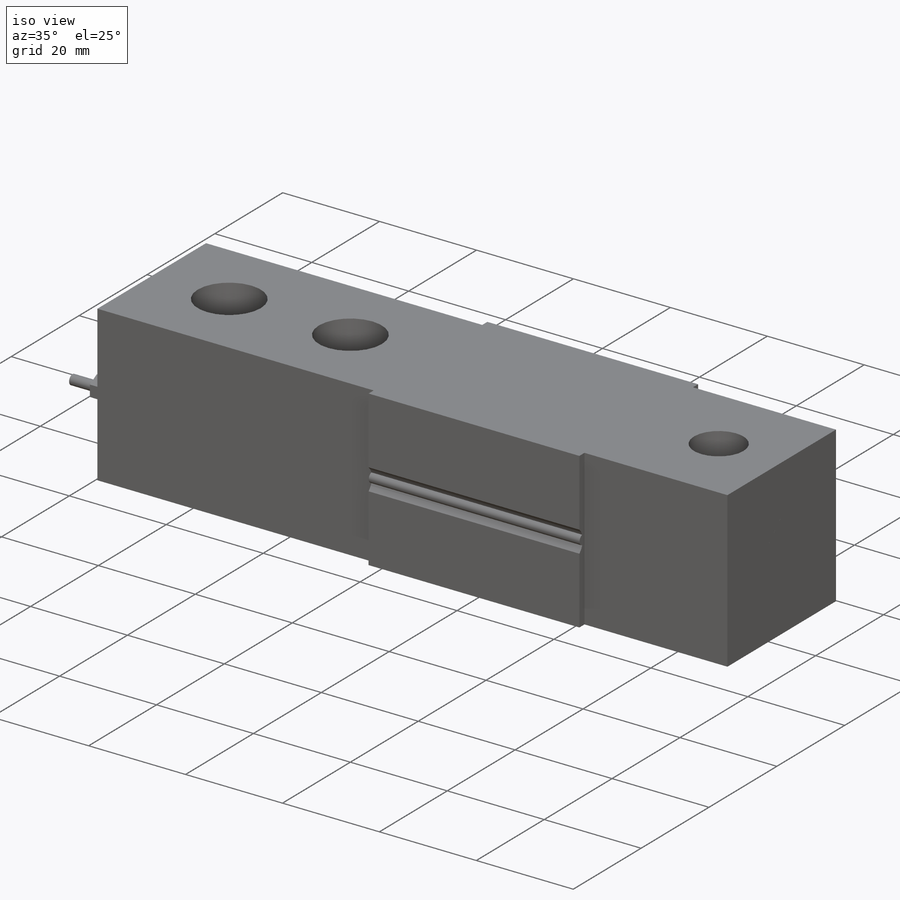
[diagram: iso view]
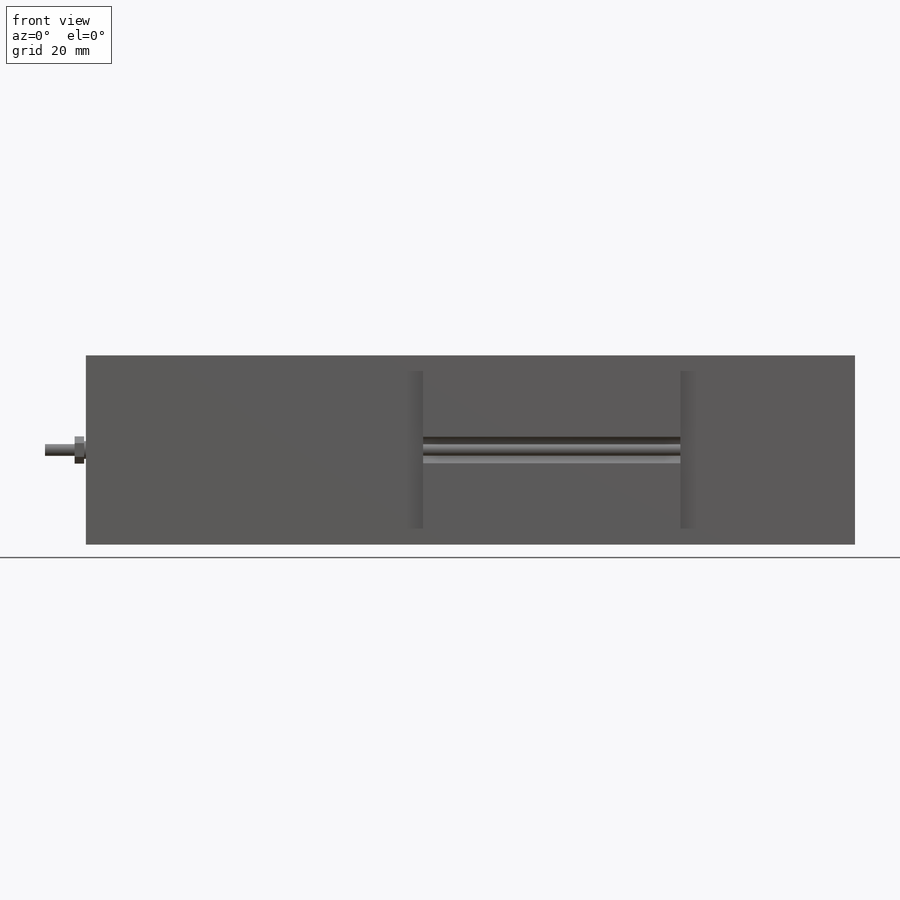
[diagram: front view]
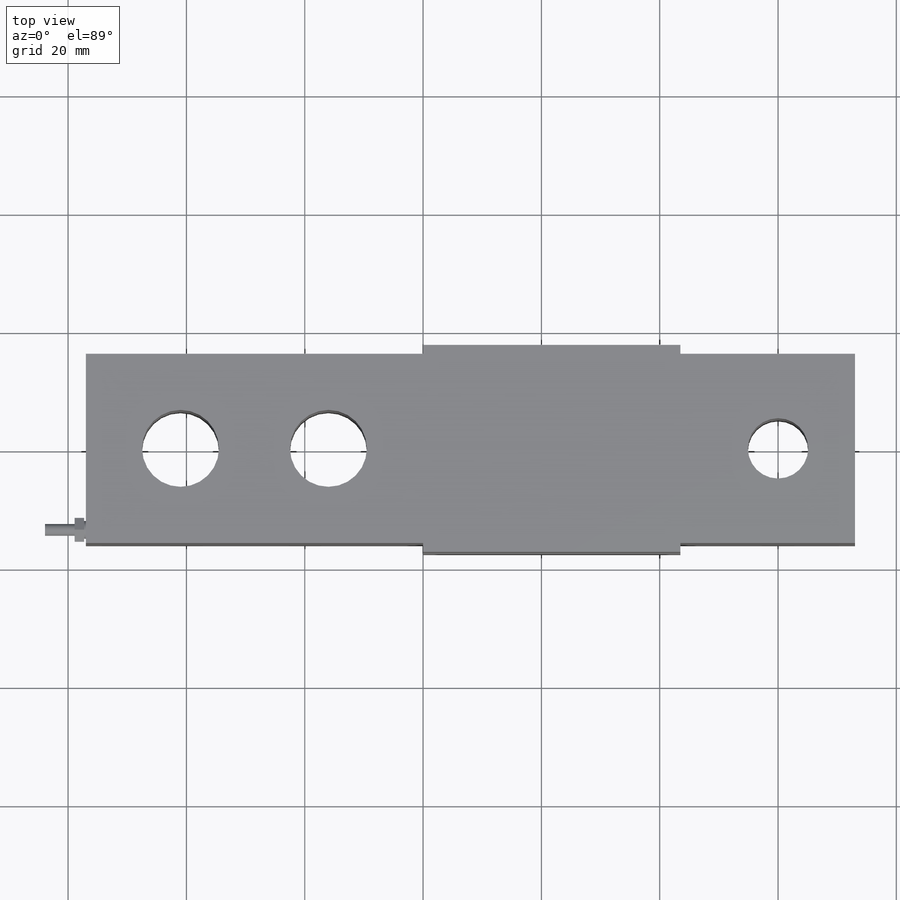
[diagram: top view]
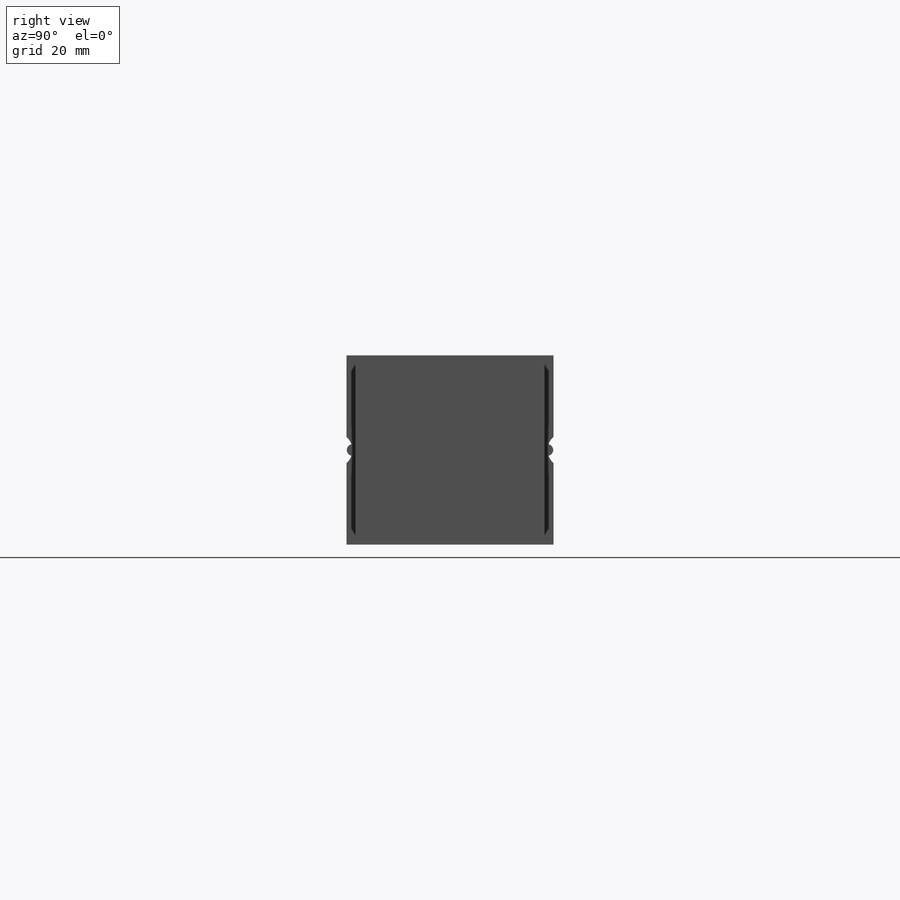
[diagram: right view]
SOLIDWORKS PART (.sldprt)
format: sldprt  version: not decoded by parser v0  size: 296,960 bytes
history: native  units: mm
features: sketch x9, extrude x6, plane x3, material x1, cut_extrude x1, hole x1, thread x1 + 4 further entries (+8 scaffold rows collapsed)
feature tree (34):
  scaffold x8  (default folders/planes/origin — collapsed)
  material  "Ст 3 ГОСТ 380-2005"
  plane  "Спереди"
  plane  "Сверху"
  plane  "Слева"
  "Начало координат"
  "PTricksFreeParameters"
  "PTricksEqu"
  "PTricksFreeParameters"
  sketch  "Эскиз1"  dims[D1=13.0mm D2=130.0mm D3=32.0mm]
  extrude  "Вытянуть1"  Depth=32mm
  sketch  "Эскиз2"  dims[D4=3.0mm D5=1.0mm D1=1.5mm D2=0.5mm D3=0.05mm]
  extrude  "Вытянуть2"  Depth=43.5mm
  sketch  "Эскиз3"  dims[D1=13.0mm D2=25.0mm D3=16.0mm]
  cut_extrude  "Вытянуть3"  [1 undecoded]
  hole  "Отверстие обработанное метчиком M12x1.751"  [1 undecoded]
  sketch  "Эскиз5"  dims[c1.D3=13.0mm c1.D1=16.0mm c1.D2=13.0mm c2.D3=76.0mm]
  sketch  "Эскиз4"  dims[hole-wizard template sketch: 59 standard entries collapsed; hole parameters kept: c18.Диаметр проходного сверла=10.2mm c18.Глубина проходного сверла=32.0mm]
  thread  "Отверстие резьбы1"  Diameter=12mm  [1 undecoded]
  sketch  "Эскиз6"  dims[D1=3.0mm D2=2.5mm]
  extrude  "Вытянуть4"  Depth=0.3mm
  sketch  "Эскиз7"  dims[D1=4.0mm]
  extrude  "Вытянуть5"  Depth=1.6mm
  sketch  "Эскиз8"  dims[D1=2.0mm]
  extrude  "Вытянуть6"  Depth=5mm
  sketch  "Эскиз10"  dims[c1.D1=16.0mm c1.D2=~3.703633mm c2.D2=45.0deg c2.D3=3.0mm c2.D4=8.0mm c2.D5=4.0mm c2.D6=12.0mm c2.D1=0.0mm]
  extrude  "Вытянуть8"  Depth=0.002mm
decode coverage: 16 of 18 modeling features carry decoded parameters; 4 rows unclassified (native names shown)
note: ~ marks probable driven/reference dimensions
note: 3 parameter values undecoded
note: suppression state not decoded; provenance and decode notes live in map.json
